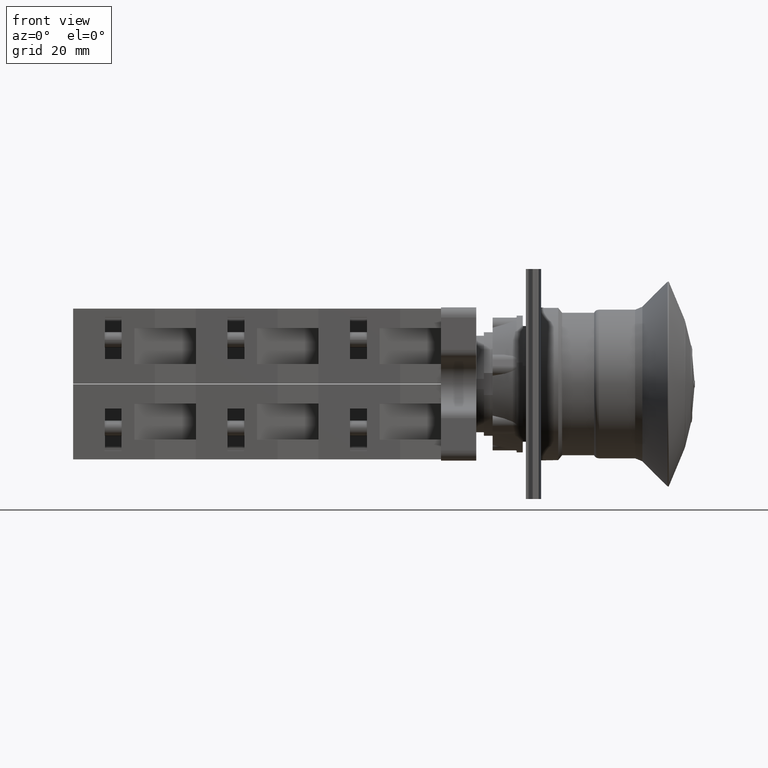
[diagram: clean part render]
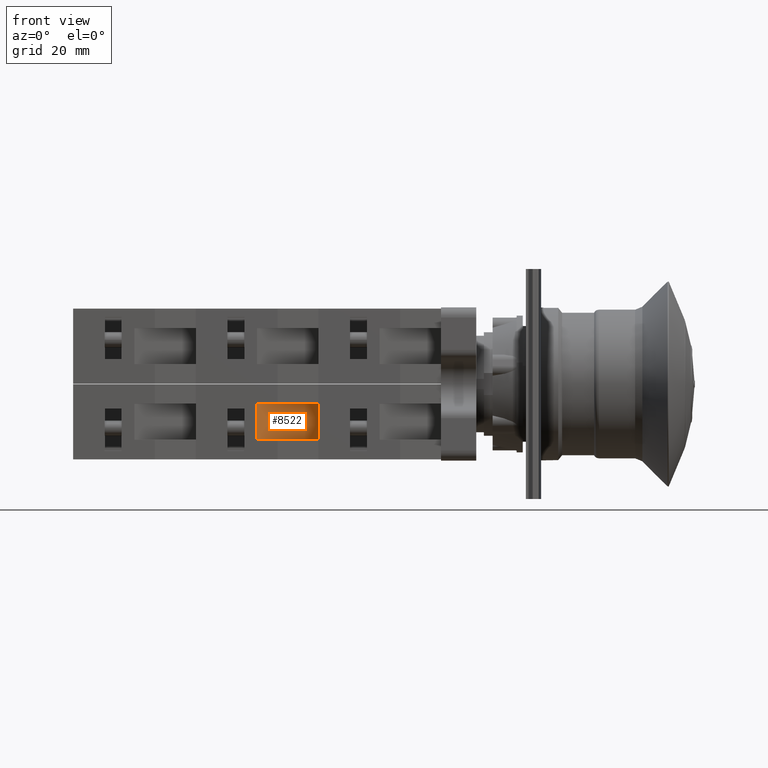
[diagram: same view with one face highlighted and labeled with its STEP entity id]
A machine part, front view. The second image highlights one B-rep face of the part: STEP entity #8522.
In plain terms, the highlighted planar face has unit normal (-0.6, 0.8, 0).
Its self-contained STEP definition (entity closure, byte-faithful):
#8467=CARTESIAN_POINT('',(-24.936741828918464,-0.202926676720378,10.850000000000000));
#8468=VERTEX_POINT('',#8467);
#8475=CARTESIAN_POINT('',(-15.936741828918466,11.797073323279626,10.850000000000000));
#8476=VERTEX_POINT('',#8475);
#8477=CARTESIAN_POINT('',(-24.936741828918464,-0.202926676720378,10.850000000000000));
#8478=DIRECTION('',(0.600000000000000,0.800000000000000,0.0));
#8479=VECTOR('',#8478,15.000000000000002);
#8480=LINE('',#8477,#8479);
#8481=EDGE_CURVE('',#8468,#8476,#8480,.T.);
#8492=CARTESIAN_POINT('',(-15.936741828918466,11.797073323279626,7.350000000000000));
#8493=DIRECTION('',(-0.800000000000000,0.600000000000000,0.0));
#8494=DIRECTION('',(0.0,0.0,1.0));
#8495=AXIS2_PLACEMENT_3D('',#8492,#8493,#8494);
#8496=PLANE('',#8495);
#8497=CARTESIAN_POINT('',(-15.936741828918466,11.797073323279626,3.850000000000001));
#8498=VERTEX_POINT('',#8497);
#8499=CARTESIAN_POINT('',(-24.936741828918464,-0.202926676720378,3.850000000000001));
#8500=VERTEX_POINT('',#8499);
#8501=CARTESIAN_POINT('',(-15.936741828918466,11.797073323279626,3.850000000000001));
#8502=DIRECTION('',(-0.600000000000000,-0.800000000000000,0.0));
#8503=VECTOR('',#8502,15.000000000000002);
#8504=LINE('',#8501,#8503);
#8505=EDGE_CURVE('',#8498,#8500,#8504,.T.);
#8506=ORIENTED_EDGE('',*,*,#8505,.F.);
#8507=CARTESIAN_POINT('',(-15.936741828918466,11.797073323279626,10.850000000000000));
#8508=DIRECTION('',(0.0,0.0,-1.0));
#8509=VECTOR('',#8508,6.999999999999999);
#8510=LINE('',#8507,#8509);
#8511=EDGE_CURVE('',#8476,#8498,#8510,.T.);
#8512=ORIENTED_EDGE('',*,*,#8511,.F.);
#8513=ORIENTED_EDGE('',*,*,#8481,.F.);
#8514=CARTESIAN_POINT('',(-24.936741828918464,-0.202926676720378,3.850000000000001));
#8515=DIRECTION('',(0.0,0.0,1.0));
#8516=VECTOR('',#8515,6.999999999999999);
#8517=LINE('',#8514,#8516);
#8518=EDGE_CURVE('',#8500,#8468,#8517,.T.);
#8519=ORIENTED_EDGE('',*,*,#8518,.F.);
#8520=EDGE_LOOP('',(#8506,#8512,#8513,#8519));
#8521=FACE_OUTER_BOUND('',#8520,.T.);
#8522=ADVANCED_FACE('',(#8521),#8496,.F.);